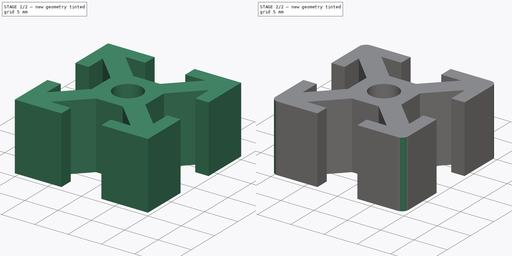
[diagram: build sequence overview — one tinted view per stage of 2, left to right]
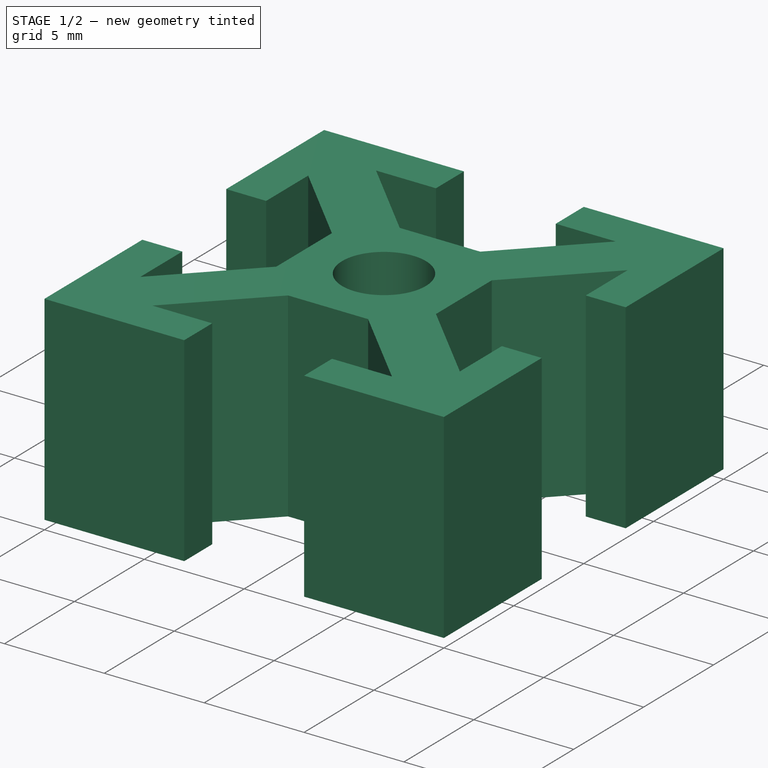
[diagram: stage 1 of 2 — iso view after this stage's code; geometry added in this stage tinted green]
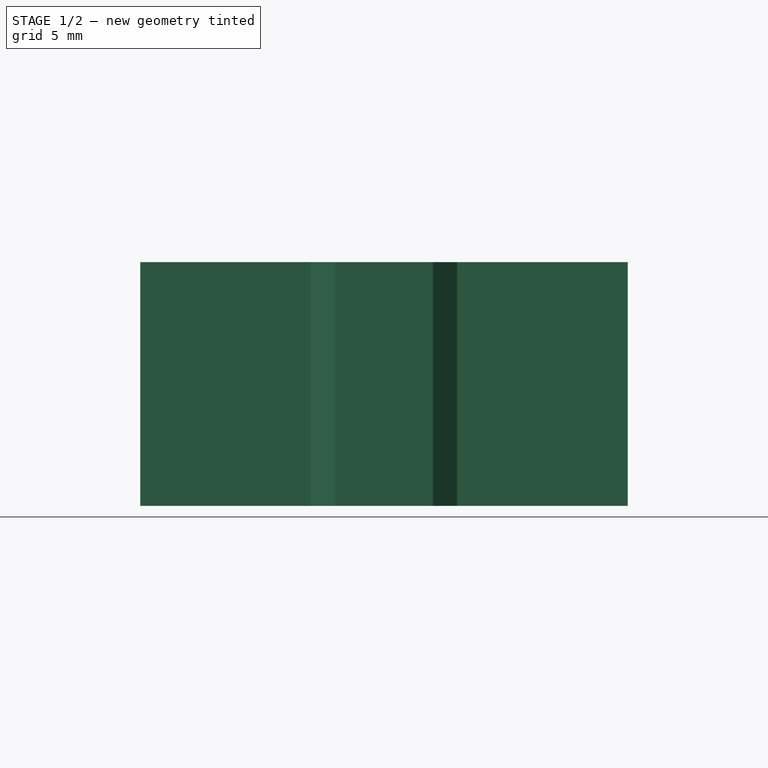
[diagram: stage 1 of 2 — front view after this stage's code; geometry added in this stage tinted green]
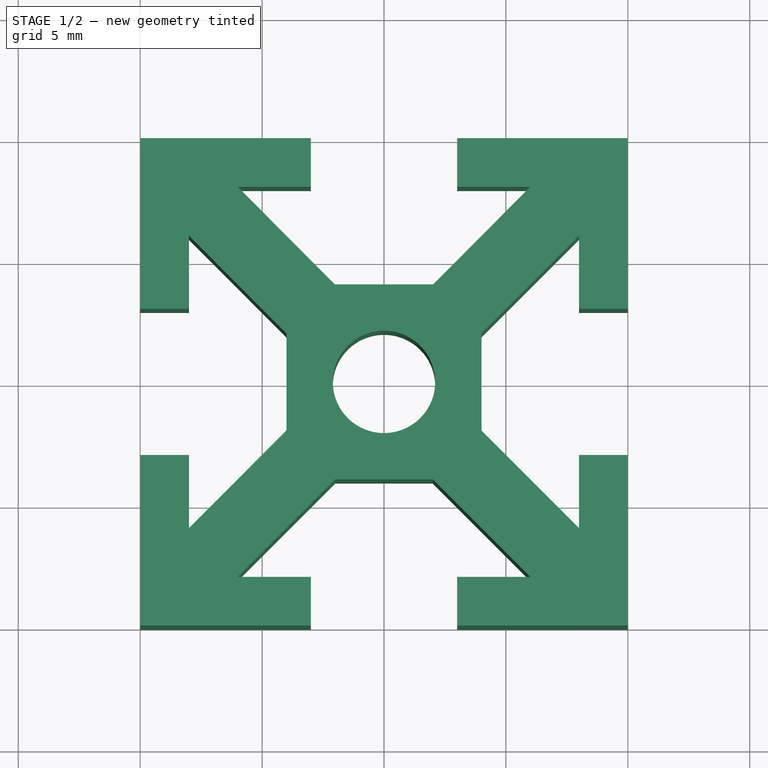
[diagram: stage 1 of 2 — top view after this stage's code; geometry added in this stage tinted green]
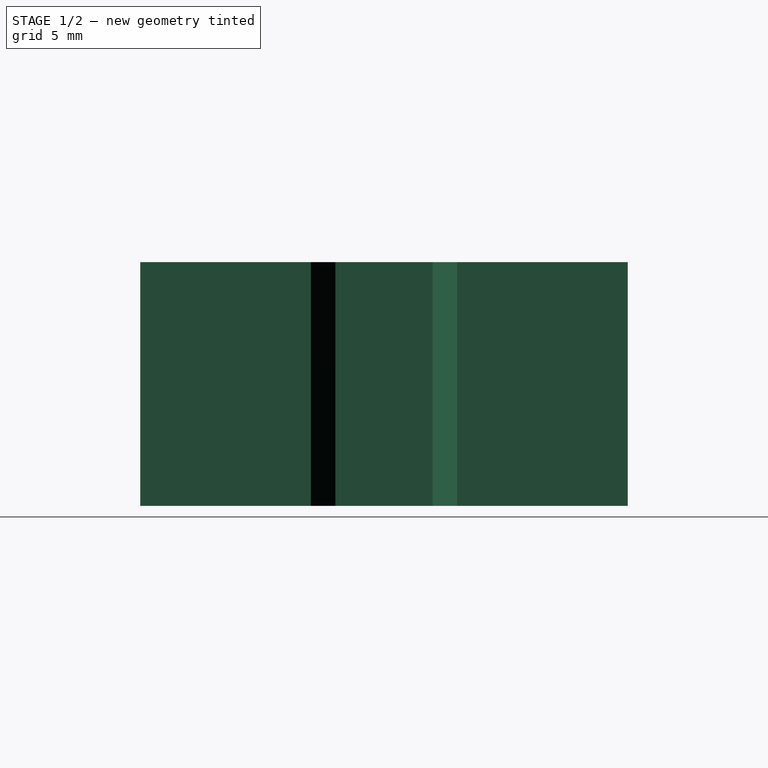
[diagram: stage 1 of 2 — right view after this stage's code; geometry added in this stage tinted green]
FCSTD DOCUMENT
Label: musuminHFS5-2020
objects: Sketcher::SketchObject×1, PartDesign::Pad×1, PartDesign::Fillet×1
note: 4 computed .brp shape members not serialized (recipe doc carries the construction recipe); baked Part::Feature solids carry a one-line shape summary decoded from their .brp

FEATURE [Sketcher::SketchObject] Sketch
  sketch-geometry (37):
    g0: LineSegment StartX=-8 StartY=6 StartZ=0 EndX=-8 EndY=3 EndZ=0
    g1: LineSegment StartX=-8 StartY=3 StartZ=0 EndX=-10 EndY=3 EndZ=0
    g2: LineSegment StartX=-10 StartY=3 StartZ=0 EndX=-10 EndY=10 EndZ=0
    g3: LineSegment StartX=-10 StartY=10 StartZ=0 EndX=-3 EndY=10 EndZ=0
    g4: LineSegment StartX=-3 StartY=10 StartZ=0 EndX=-3 EndY=8 EndZ=0
    g5: LineSegment StartX=-3 StartY=8 StartZ=0 EndX=-6 EndY=8 EndZ=0
    g6: LineSegment StartX=-6 StartY=8 StartZ=0 EndX=-2.0146 EndY=4 EndZ=0
    g7: LineSegment StartX=-2.0146 StartY=4 StartZ=0 EndX=2.0146 EndY=4 EndZ=0
    g8: LineSegment StartX=2.0146 StartY=4 StartZ=0 EndX=6 EndY=8 EndZ=0
    g9: LineSegment StartX=6 StartY=8 StartZ=0 EndX=3 EndY=8 EndZ=0
    g10: LineSegment StartX=3 StartY=8 StartZ=0 EndX=3 EndY=10 EndZ=0
    g11: LineSegment StartX=3 StartY=10 StartZ=0 EndX=10 EndY=10 EndZ=0
    g12: LineSegment StartX=10 StartY=10 StartZ=0 EndX=10 EndY=3 EndZ=0
    g13: LineSegment StartX=10 StartY=3 StartZ=0 EndX=8 EndY=3 EndZ=0
    g14: LineSegment StartX=8 StartY=3 StartZ=0 EndX=8 EndY=6 EndZ=0
    g15: LineSegment StartX=8 StartY=6 StartZ=0 EndX=4 EndY=1.99641 EndZ=0
    g16: LineSegment StartX=4 StartY=1.99641 StartZ=0 EndX=4 EndY=-1.99641 EndZ=0
    g17: LineSegment StartX=4 StartY=-1.99641 StartZ=0 EndX=8 EndY=-6 EndZ=0
    g18: LineSegment StartX=8 StartY=-6 StartZ=0 EndX=8 EndY=-3 EndZ=0
    g19: LineSegment StartX=8 StartY=-3 StartZ=0 EndX=10 EndY=-3 EndZ=0
    g20: LineSegment StartX=10 StartY=-3 StartZ=0 EndX=10 EndY=-10 EndZ=0
    g21: LineSegment StartX=10 StartY=-10 StartZ=0 EndX=3 EndY=-10 EndZ=0
    g22: LineSegment StartX=3 StartY=-10 StartZ=0 EndX=3 EndY=-8 EndZ=0
    g23: LineSegment StartX=3 StartY=-8 StartZ=0 EndX=6 EndY=-8 EndZ=0
    g24: LineSegment StartX=6 StartY=-8 StartZ=0 EndX=2.00359 EndY=-4 EndZ=0
    g25: LineSegment StartX=2.00359 StartY=-4 StartZ=0 EndX=-2.00359 EndY=-4 EndZ=0
    g26: LineSegment StartX=-2.00359 StartY=-4 StartZ=0 EndX=-6 EndY=-8 EndZ=0
    g27: LineSegment StartX=-6 StartY=-8 StartZ=0 EndX=-3 EndY=-8 EndZ=0
    g28: LineSegment StartX=-3 StartY=-8 StartZ=0 EndX=-3 EndY=-10 EndZ=0
    g29: LineSegment StartX=-3 StartY=-10 StartZ=0 EndX=-10 EndY=-10 EndZ=0
    g30: LineSegment StartX=-10 StartY=-10 StartZ=0 EndX=-10 EndY=-3 EndZ=0
    g31: LineSegment StartX=-10 StartY=-3 StartZ=0 EndX=-8 EndY=-3 EndZ=0
    g32: LineSegment StartX=-8 StartY=-3 StartZ=0 EndX=-8 EndY=-6 EndZ=0
    g33: LineSegment StartX=-8 StartY=-6 StartZ=0 EndX=-4 EndY=-1.98534 EndZ=0
    g34: LineSegment StartX=-4 StartY=-1.98534 StartZ=0 EndX=-4 EndY=1.98534 EndZ=0
    g35: LineSegment StartX=-4 StartY=1.98534 StartZ=0 EndX=-8 EndY=6 EndZ=0
    g36: Circle CenterX=0 CenterY=0 CenterZ=0 NormalX=0 NormalY=0 NormalZ=1 Radius=2.1
  constraints (106):
    c: Vertical(g0)
    c: Coincident(g0,g1)
    c: Horizontal(g1)
    c: Coincident(g1,g2)
    c: Vertical(g2)
    c: Coincident(g2,g3)
    c: Horizontal(g3)
    c: Coincident(g3,g4)
    c: Vertical(g4)
    c: Coincident(g4,g5)
    c: Horizontal(g5)
    c: Coincident(g5,g6)
    c: Coincident(g6,g7)
    c: Horizontal(g7)
    c: Coincident(g7,g8)
    c: Coincident(g8,g9)
    c: Horizontal(g9)
    c: Coincident(g9,g10)
    c: Vertical(g10)
    c: Coincident(g10,g11)
    c: Horizontal(g11)
    c: Coincident(g11,g12)
    c: Vertical(g12)
    c: Coincident(g12,g13)
    c: Horizontal(g13)
    c: Coincident(g13,g14)
    c: Vertical(g14)
    c: Coincident(g14,g15)
    c: Coincident(g15,g16)
    c: Vertical(g16)
    c: Coincident(g16,g17)
    c: Coincident(g17,g18)
    c: Vertical(g18)
    c: Coincident(g18,g19)
    c: Horizontal(g19)
    c: Coincident(g19,g20)
    c: Vertical(g20)
    c: Coincident(g20,g21)
    c: Horizontal(g21)
    c: Coincident(g21,g22)
    c: Vertical(g22)
    c: Coincident(g22,g23)
    c: Horizontal(g23)
    c: Coincident(g23,g24)
    c: Coincident(g24,g25)
    c: Horizontal(g25)
    c: Coincident(g25,g26)
    c: Coincident(g26,g27)
    c: Horizontal(g27)
    c: Coincident(g27,g28)
    c: Vertical(g28)
    c: Coincident(g28,g29)
    c: Horizontal(g29)
    c: Coincident(g29,g30)
    c: Vertical(g30)
    c: Coincident(g30,g31)
    c: Horizontal(g31)
    c: Coincident(g31,g32)
    c: Vertical(g32)
    c: Coincident(g32,g33)
    c: Coincident(g33,g34)
    c: Vertical(g34)
    c: Coincident(g34,g35)
    c: Coincident(g35,g0)
    c: Coincident(g36,g-1)
    c: Radius(g36) = 2.1
    c: DistanceY(g2,g29) = -20
    c: DistanceX(g29,g20) = 20
    c: DistanceY(g30,g1) = 6
    c: DistanceX(g3,g10) = 6
    c: DistanceX(g28,g21) = 6
    c: DistanceY(g19,g12) = 6
    c: DistanceX(g2,g11) = 20
    c: DistanceX(g5,g8) = 12
    c: DistanceY(g0,g32) = -12
    c: DistanceY(g14,g17) = -12
    c: DistanceX(g26,g23) = 12
    c: DistanceY(g25,g6) = 8
    c: DistanceX(g33,g16) = 8
    c: DistanceY(g0) = -3
    c: DistanceX(g1) = -2
    c: DistanceX(g31) = 2
    c: DistanceY(g28) = -2
    c: DistanceY(g26,g25) = 4
    c: DistanceX(g32,g33) = 4
    c: DistanceY(g22) = 2
    c: DistanceX(g19) = 2
    c: DistanceX(g13) = -2
    c: DistanceY(g14) = 3
    c: DistanceX(g23) = 3
    c: DistanceY(g10) = 2
    c: DistanceY(g4) = -2
    c: DistanceX(g9) = -3
    c: Symmetric(g29,g20,g-2)
    c: Symmetric(g20,g11,g-1)
    c: DistanceY(g20,g11) = 20
    c: Equal(g17,g15)
    c: Symmetric(g19,g12,g-1)
    c: Equal(g24,g26)
    c: Symmetric(g28,g21,g-2)
    c: Equal(g33,g35)
    c: Symmetric(g30,g1,g-1)
    c: Equal(g6,g8)
    c: Symmetric(g3,g10,g-2)
    c: Parallel(g35,g6)
    c: Parallel(g17,g24)
FEATURE [PartDesign::Pad] Pad
  Length = 10
  Length2 = 100
  Sketch = -> Sketch
  Type = 0
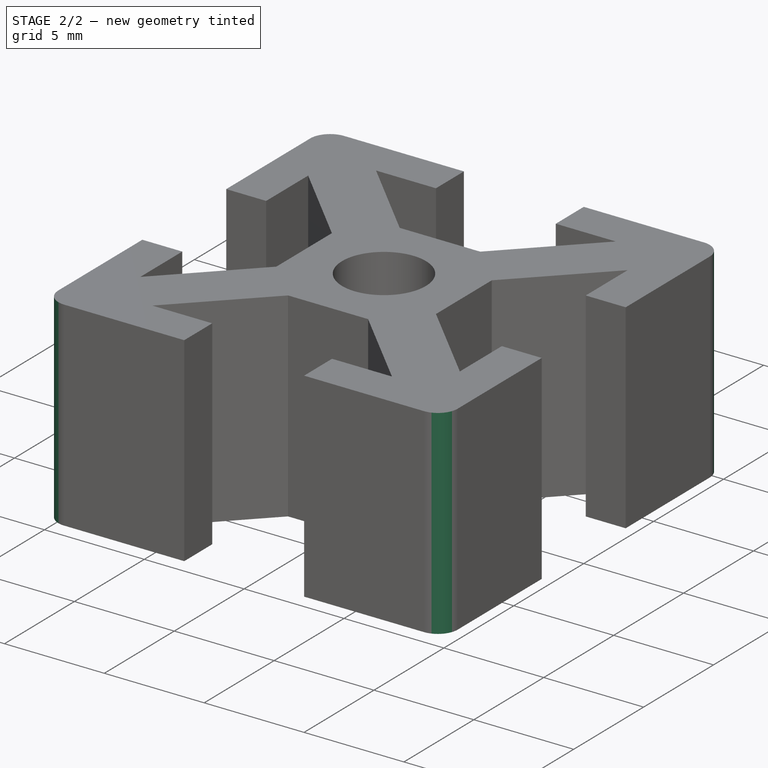
[diagram: stage 2 of 2 — iso view after this stage's code; geometry added in this stage tinted green]
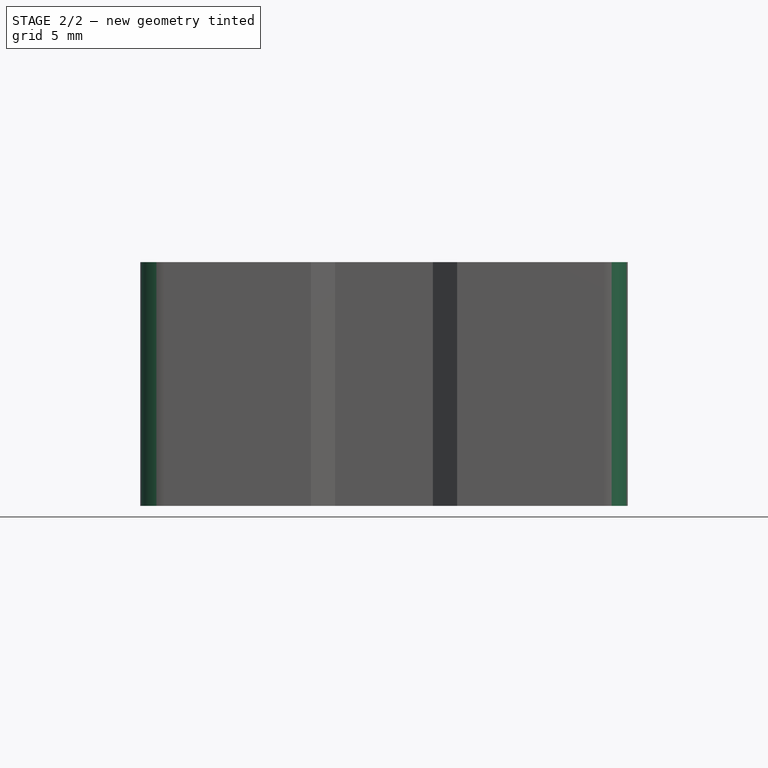
[diagram: stage 2 of 2 — front view after this stage's code; geometry added in this stage tinted green]
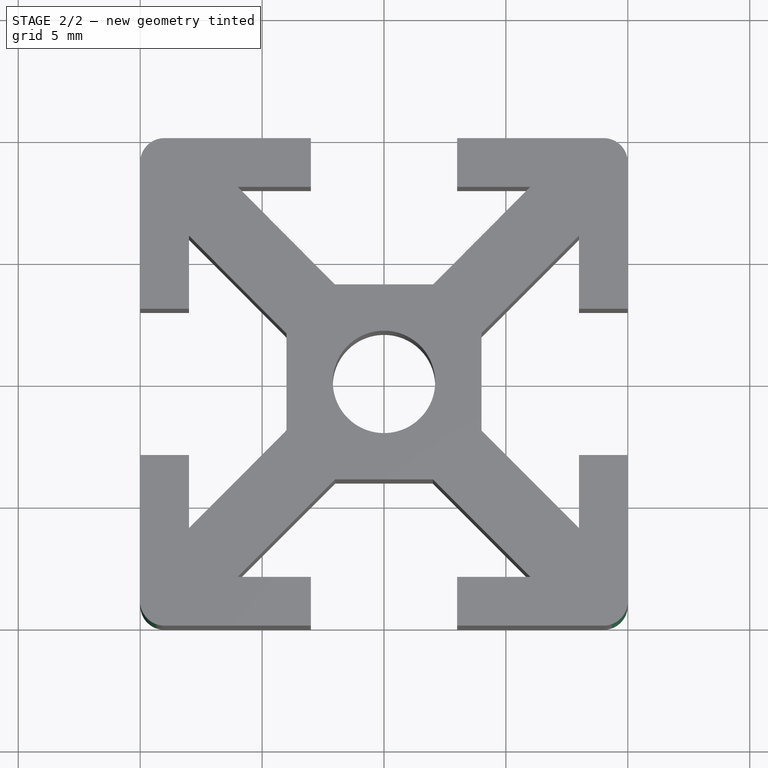
[diagram: stage 2 of 2 — top view after this stage's code; geometry added in this stage tinted green]
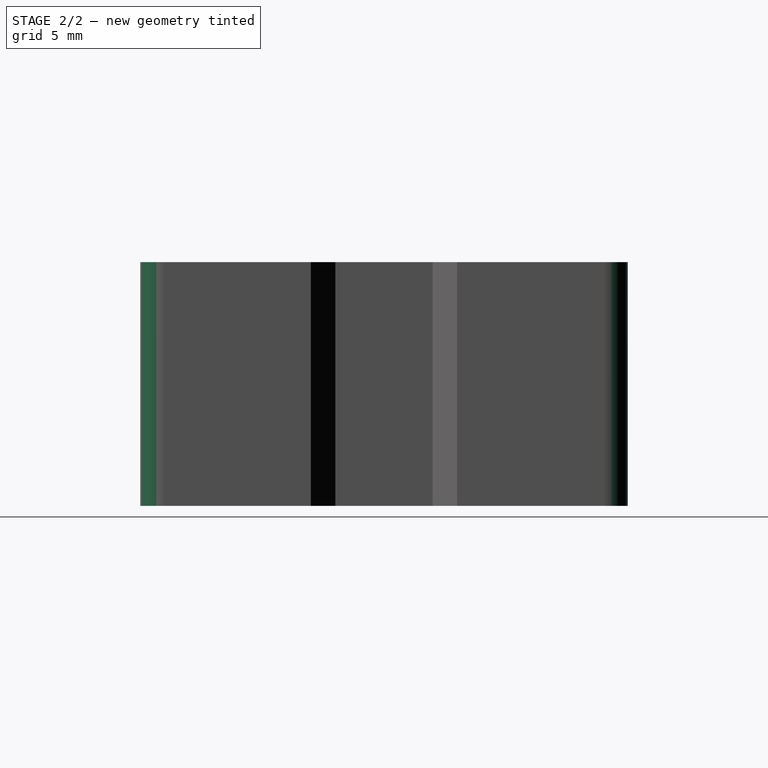
[diagram: stage 2 of 2 — right view after this stage's code; geometry added in this stage tinted green]
FEATURE [PartDesign::Fillet] Fillet
  Base = -> Pad [Edge8,Edge35,Edge89,Edge62]
  Radius = 1
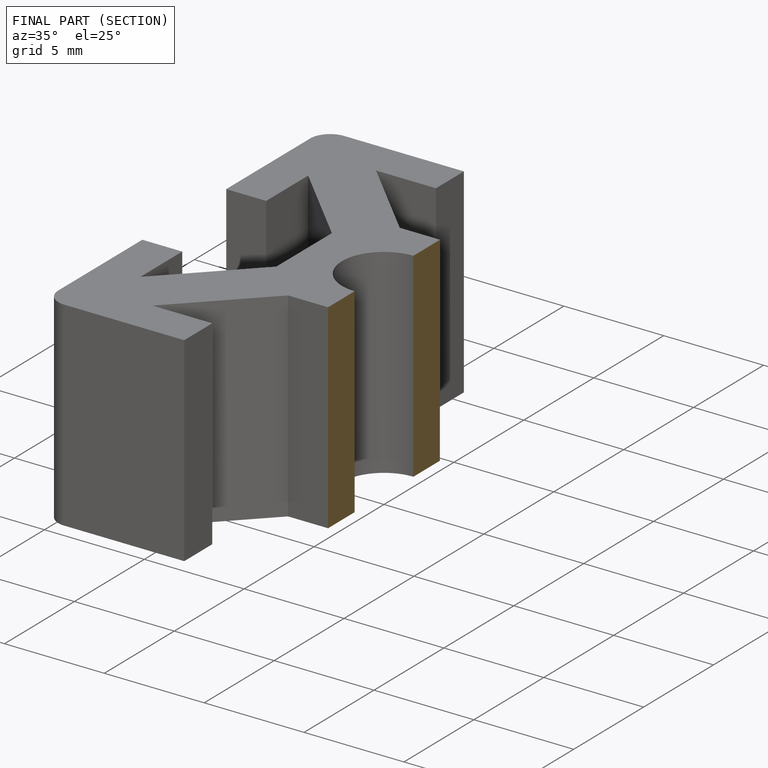
[diagram: finished part — half-section view (interior)]
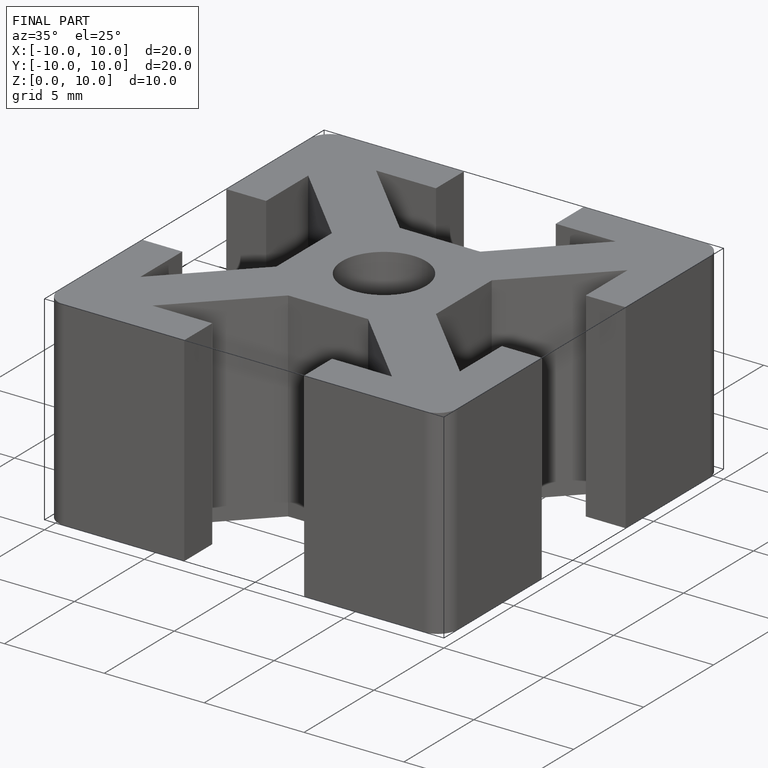
[diagram: finished part — iso view with bounding-box wireframe]
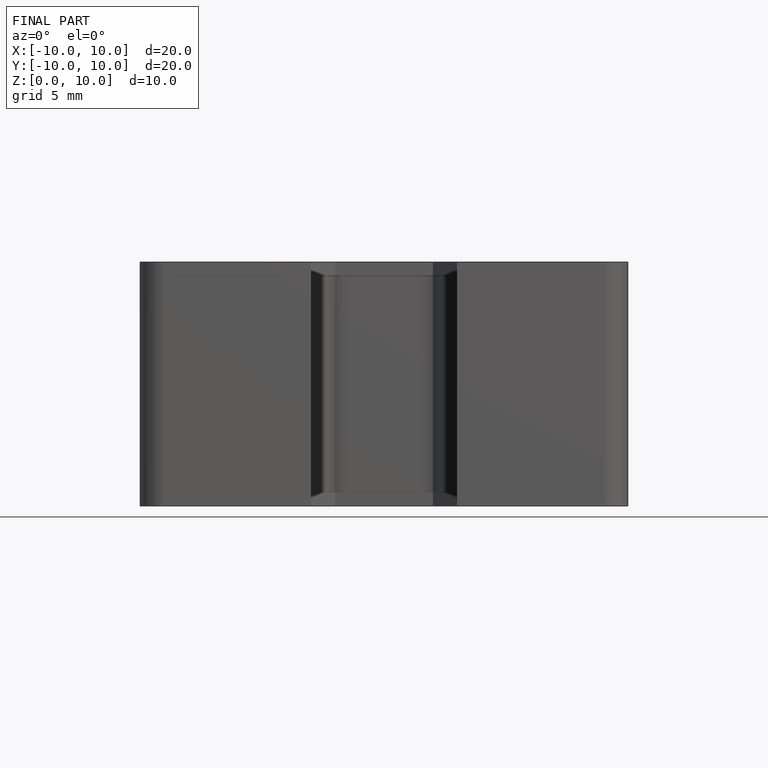
[diagram: finished part — front view with bounding-box wireframe]
